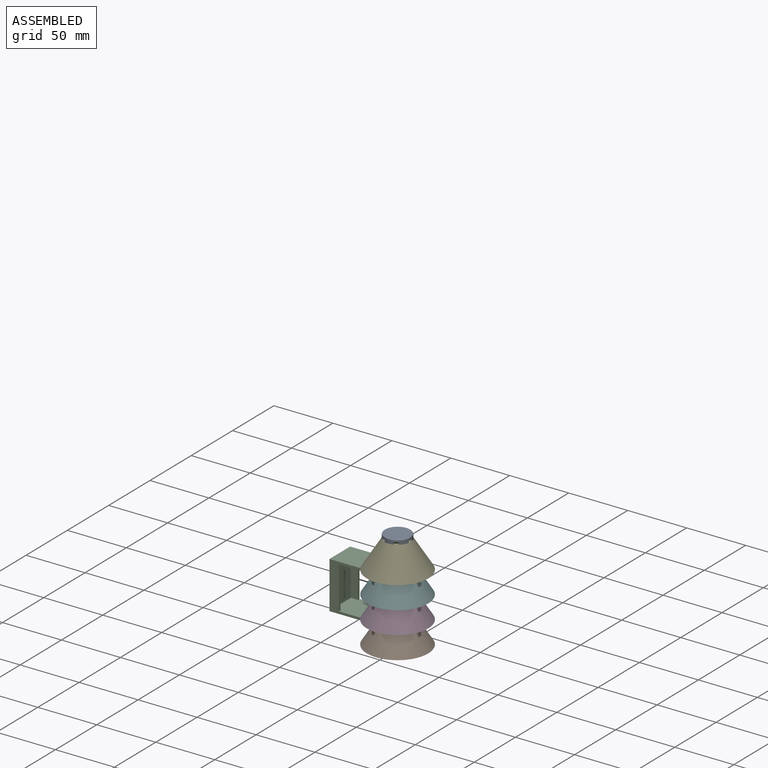
[diagram: assembled view]
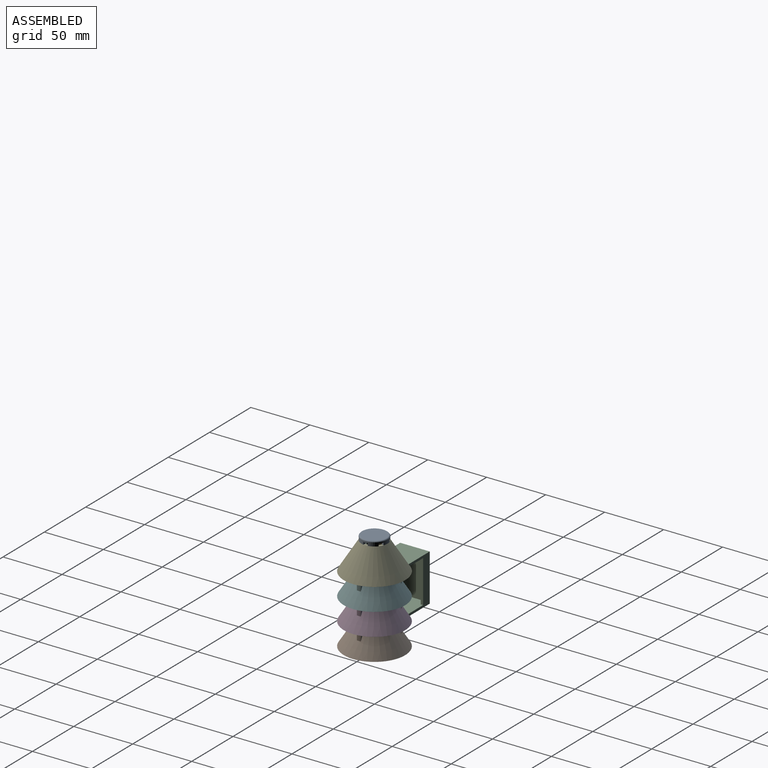
[diagram: assembled view, second angle]
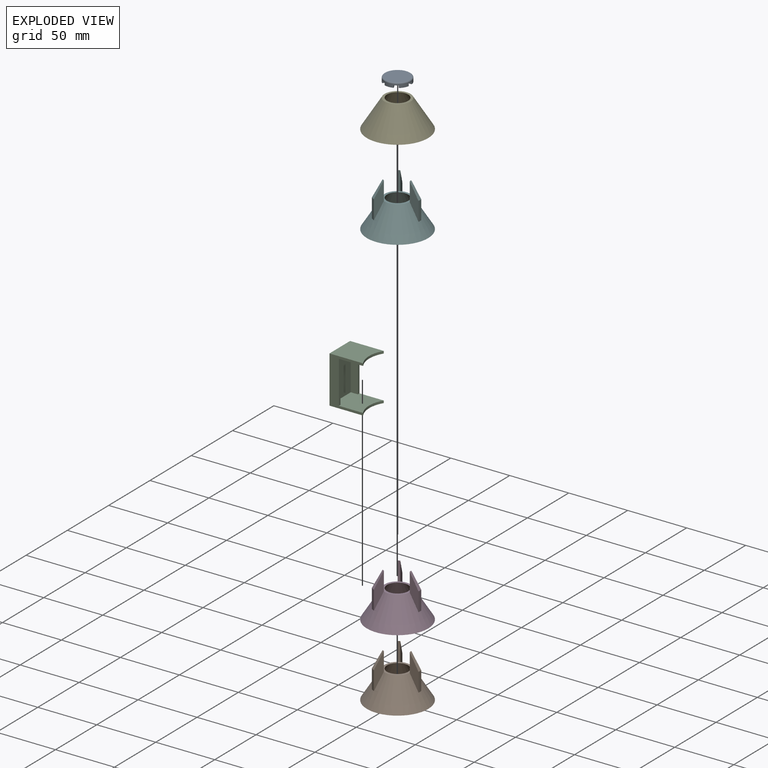
[diagram: exploded view]
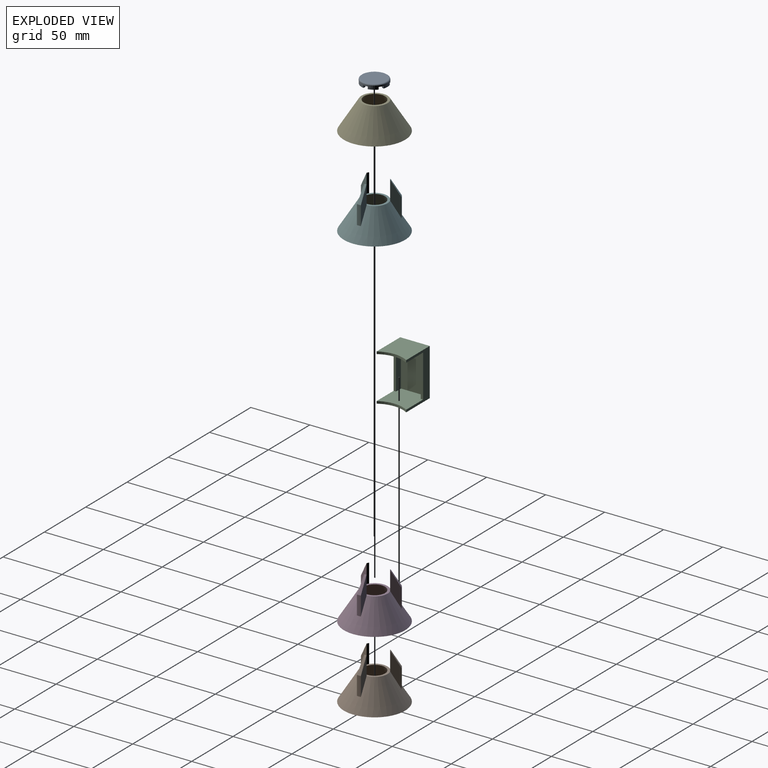
[diagram: exploded view, second angle]
ASSEMBLY  parts=6 mates=5
PART A: 28 faces, bbox 23.8x23.8x4 mm
  f0: cylinder r=9mm len=5.33mm, axis (0,0,-1), area 12.6mm2, adj f10,f13,f15,f26
  f1: plane 7.52x2.54mm, normal (0,0,-1), area 14mm2, adj f2,f11,f24,f25
  f2: cylinder r=9mm len=6.16mm, axis (0,0,-1), area 12.6mm2, adj f1,f13,f24,f25
  f3: plane 6.86x5.05mm, normal (0,0,-1), area 14mm2, adj f4,f11,f22,f23
  f4: cylinder r=9mm len=5.33mm, axis (0,0,-1), area 12.6mm2, adj f3,f13,f22,f23
  f5: plane 6.86x5.05mm, normal (0,0,-1), area 14mm2, adj f6,f11,f20,f21
  f6: cylinder r=9mm len=5.33mm, axis (0,0,-1), area 12.6mm2, adj f5,f13,f20,f21
  f7: plane 7.52x2.54mm, normal (0,0,-1), area 14mm2, adj f9,f11,f18,f19
  f8: plane 6.86x5.05mm, normal (0,0,-1), area 14mm2, adj f11,f12,f16,f17
  f9: cylinder r=9mm len=6.16mm, axis (0,0,-1), area 12.6mm2, adj f7,f13,f18,f19
  f10: plane 6.86x5.05mm, normal (0,0,-1), area 14mm2, adj f0,f11,f15,f26
  f11: cylinder r=11mm len=22mm, axis (0,0,-1), area 161.3mm2, adj f1,f3,f5,f7,f8,f10,f13,f15
  f12: cylinder r=9mm len=5.33mm, axis (0,0,-1), area 12.6mm2, adj f8,f13,f16,f17
  f13: plane 22x20.67mm, normal (0,0,-1), area 296.4mm2, adj f0,f2,f4,f6,f9,f11,f12,f15
  f14: plane 20x20mm, normal (0,0,1), area 314.2mm2, adj f27
  f15: plane 2x1.97mm, normal (0.17,0.98,0), area 4mm2, adj f0,f10,f11,f13
  f16: plane 2x1.97mm, normal (0.17,-0.98,0), area 4mm2, adj f8,f11,f12,f13
  f17: plane 2x1.53mm, normal (-0.77,0.64,0), area 4mm2, adj f8,f11,f12,f13
  f18: plane 2x1.88mm, normal (0.94,-0.34,0), area 4mm2, adj f7,f9,f11,f13
  f19: plane 2x1.88mm, normal (-0.94,-0.34,0), area 4mm2, adj f7,f9,f11,f13
  f20: plane 2x1.53mm, normal (0.77,0.64,0), area 4mm2, adj f5,f6,f11,f13
  f21: plane 2x1.97mm, normal (-0.17,-0.98,0), area 4mm2, adj f5,f6,f11,f13
  f22: plane 2x1.97mm, normal (-0.17,0.98,0), area 4mm2, adj f3,f4,f11,f13
  f23: plane 2x1.53mm, normal (0.77,-0.64,0), area 4mm2, adj f3,f4,f11,f13
  f24: plane 2x1.88mm, normal (-0.94,0.34,0), area 4mm2, adj f1,f2,f11,f13
  f25: plane 2x1.88mm, normal (0.94,0.34,0), area 4mm2, adj f1,f2,f11,f13
  f26: plane 2x1.53mm, normal (-0.77,-0.64,0), area 4mm2, adj f0,f10,f11,f13
  f27: torus R=10mm, axis (0,0,1), area 105mm2, adj f11,f14
PART B: 19 faces, bbox 52x52x40 mm
  f0: plane 52x52mm, normal (0,0,-1), area 314.2mm2, adj f1,f3
  f1: cone r=11mm half-angle=32deg, axis (0,0,-1), area 3171.2mm2, adj f0,f2,f4,f7,f8,f9,f12,f13
  f2: plane 22x22mm, normal (0,0,1), area 125.7mm2, adj f1,f3,f6,f11,f16
  f3: cone r=9mm half-angle=32deg, axis (0,0,-1), area 2934.1mm2, adj f0,f2
  f4: cylinder r=19mm len=16mm, axis (0,0,-1), area 53.1mm2, adj f1,f5,f7,f8
  f5: cone r=11mm half-angle=32deg, axis (0,0,-1), area 39.5mm2, adj f4,f6,f7,f8
  f6: cylinder r=11mm len=16mm, axis (0,0,-1), area 30.7mm2, adj f2,f5,f7,f8
  f7: plane 28.8x7.97mm, normal (-0.09,1,0), area 128mm2, adj f1,f4,f5,f6
  f8: plane 28.8x7.97mm, normal (-0.09,-1,0), area 128mm2, adj f1,f4,f5,f6
  f9: cylinder r=19mm len=16mm, axis (0,0,-1), area 53.1mm2, adj f1,f10,f12,f13
  f10: cone r=11mm half-angle=32deg, axis (0,0,-1), area 39.5mm2, adj f9,f11,f12,f13
  f11: cylinder r=11mm len=16mm, axis (0,0,-1), area 30.7mm2, adj f2,f10,f12,f13
  f12: plane 28.8x6.55mm, normal (-0.82,-0.57,0), area 128mm2, adj f1,f9,f10,f11
  f13: plane 28.8x7.25mm, normal (0.91,0.42,0), area 128mm2, adj f1,f9,f10,f11
  f14: cylinder r=19mm len=16mm, axis (0,0,-1), area 53.1mm2, adj f1,f15,f17,f18
  f15: cone r=11mm half-angle=32deg, axis (0,0,-1), area 39.5mm2, adj f14,f16,f17,f18
  f16: cylinder r=11mm len=16mm, axis (0,0,-1), area 30.7mm2, adj f2,f15,f17,f18
  f17: plane 28.8x7.25mm, normal (0.91,-0.42,0), area 128mm2, adj f1,f14,f15,f16
  f18: plane 28.8x6.55mm, normal (-0.82,0.57,0), area 128mm2, adj f1,f14,f15,f16
PART C: 14 faces, bbox 28.5x25x40 mm
  f0: plane 40x25mm, normal (-1,0,0), area 1000mm2, adj f1,f3,f4,f11
  f1: plane 40x28.51mm, normal (0,1,0), area 402mm2, adj f0,f2,f4,f5,f10,f11,f12,f13
  f2: cylinder r=24mm len=25mm, axis (0,0,1), area 52.6mm2, adj f1,f3,f4,f5
  f3: plane 40x28.51mm, normal (0,-1,0), area 402mm2, adj f0,f2,f4,f5,f6,f11,f12,f13
  f4: plane 28.51x25mm, normal (0,0,-1), area 653.4mm2, adj f0,f1,f2,f3
  f5: plane 26.51x25mm, normal (0,0,1), area 579.4mm2, adj f1,f2,f3,f6,f7,f8,f9,f10
  f6: plane 36x2mm, normal (1,0,0), area 72mm2, adj f3,f5,f7,f13
  f7: plane 36x6mm, normal (0,1,0), area 216mm2, adj f5,f6,f8,f13
  f8: plane 36x21mm, normal (1,0,0), area 756mm2, adj f5,f7,f9,f13
  f9: plane 36x6mm, normal (0,-1,0), area 216mm2, adj f5,f8,f10,f13
  f10: plane 36x2mm, normal (1,0,0), area 72mm2, adj f1,f5,f9,f13
  f11: plane 28.51x25mm, normal (0,0,1), area 653.4mm2, adj f0,f1,f3,f12
  f12: cylinder r=24mm len=25mm, axis (0,0,1), area 52.6mm2, adj f1,f3,f11,f13
  f13: plane 26.51x25mm, normal (0,0,-1), area 579.4mm2, adj f1,f3,f6,f7,f8,f9,f10,f12
PART D: same geometry as B
PART E: 4 faces, bbox 52x52x24 mm
  f0: plane 52x52mm, normal (0,0,-1), area 314.2mm2, adj f1,f3
  f1: cone r=11mm half-angle=32deg, axis (0,0,-1), area 3289.8mm2, adj f0,f2
  f2: plane 22x22mm, normal (0,0,1), area 125.7mm2, adj f1,f3
  f3: cone r=9mm half-angle=32deg, axis (0,0,-1), area 2934.1mm2, adj f0,f2
PART F: same geometry as B
PLACE A t=(0,0,57.43)mm
PLACE B at identity
PLACE C t=(0,0,19.14)mm
PLACE D t=(0,0,19.14)mm
PLACE E t=(0,0,57.43)mm
PLACE F t=(0,0,38.29)mm
MATE fastened F.f1 <-> E.f1  axis (0,0,1) through (0,0,95.89)mm
MATE fastened B.f1 <-> D.f1  axis (0,0,1) through (0,0,57.6)mm
MATE fastened C.f2 <-> D.f1  axis (0,0,1) through (0,0,19.14)mm
MATE fastened A.f0 <-> E.f1  axis (0,0,1) through (0,0,81.43)mm
MATE fastened F.f1 <-> D.f1  axis (0,0,1) through (0,0,76.74)mm
